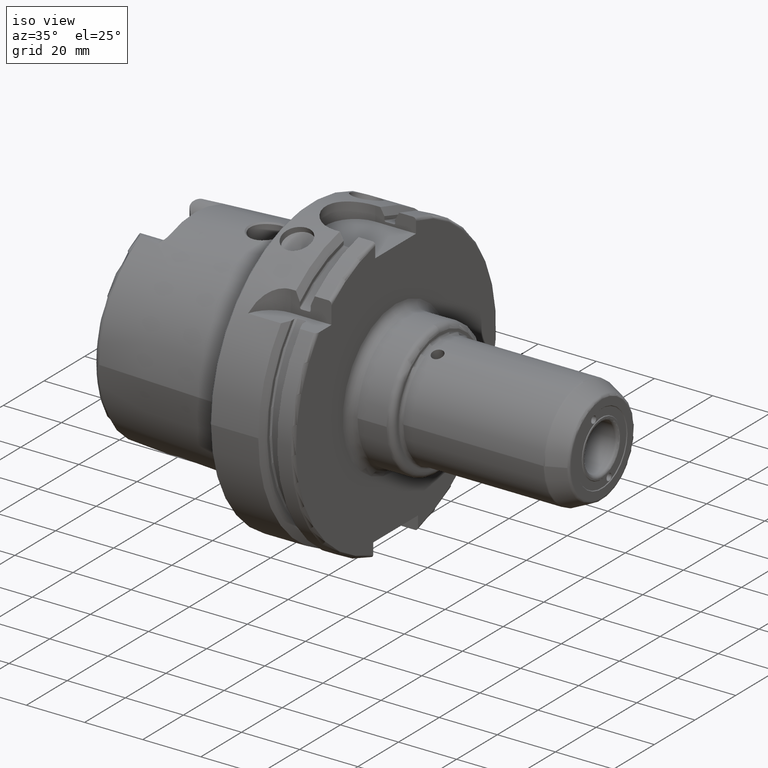
[diagram: clean part render]
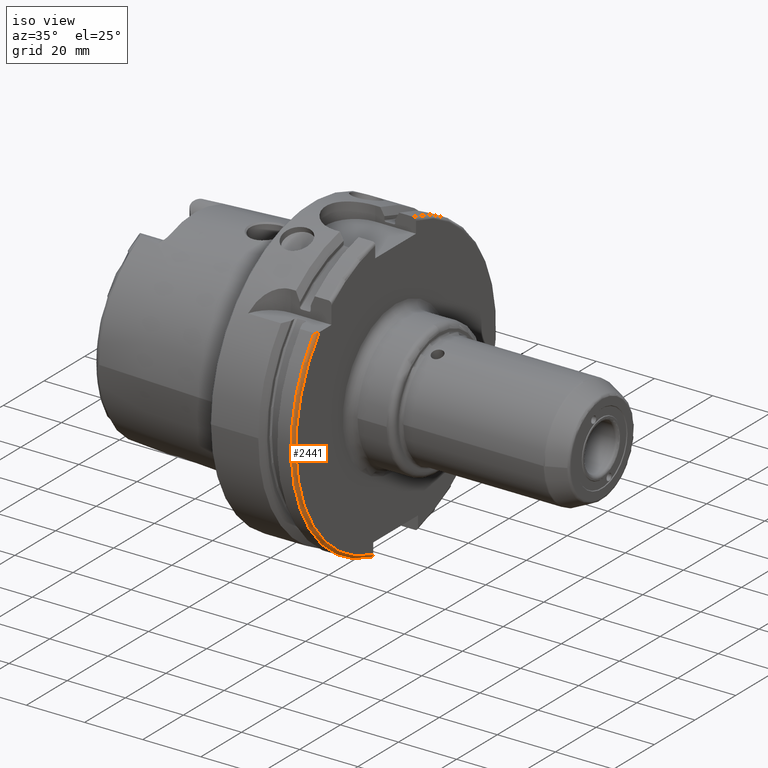
[diagram: same view with one face highlighted and labeled with its STEP entity id]
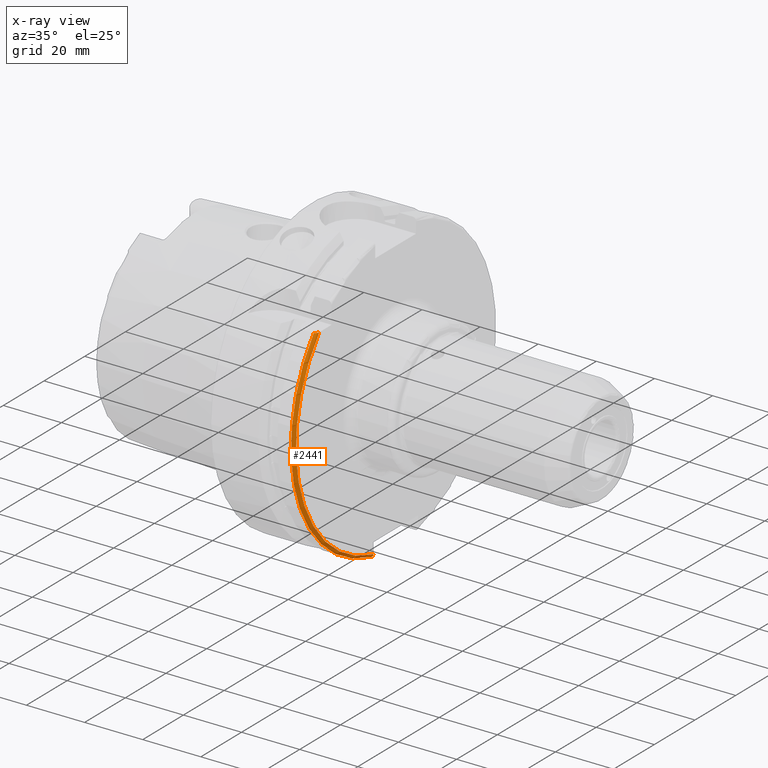
[diagram: x-ray of the same camera — body ghosted, the highlighted face saturated]
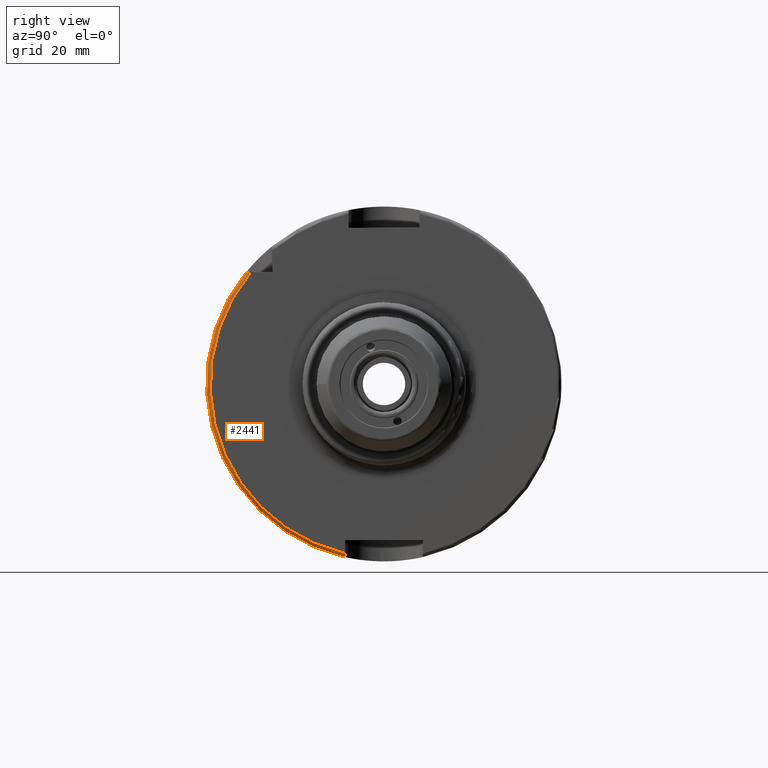
[diagram: same view with one face highlighted and labeled with its STEP entity id]
A machine part, iso view. The second image highlights one B-rep face of the part: STEP entity #2441.
The next image is the same camera in x-ray: the body ghosted, the highlighted face saturated — about 0% of this face is hidden behind the body in this view.
A second angle (right view) of the same face is appended — the face is thin or edge-on in the first view.
In plain terms, the highlighted toroidal blend (fillet) surface has major radius 49 mm and minor (blend) radius 1 mm.
Its self-contained STEP definition (entity closure, byte-faithful):
#43=TOROIDAL_SURFACE('',#2706,49.,1.);
#164=CIRCLE('',#2593,49.);
#221=CIRCLE('',#2707,50.);
#381=FACE_OUTER_BOUND('',#539,.T.);
#539=EDGE_LOOP('',(#2035,#2036,#2037,#2038));
#660=B_SPLINE_CURVE_WITH_KNOTS('',3,(#5000,#5001,#5002,#5003,#5004,#5005,
#5006,#5007,#5008,#5009),.UNSPECIFIED.,.F.,.F.,(4,2,2,2,4),(-0.170825962094808,
-0.118543630596578,-0.0729156509442915,-0.0340271521483428,0.),
 .UNSPECIFIED.);
#670=B_SPLINE_CURVE_WITH_KNOTS('',3,(#5197,#5198,#5199,#5200,#5201,#5202,
#5203,#5204,#5205,#5206),.UNSPECIFIED.,.F.,.F.,(4,2,2,2,4),(0.,0.0367272650241839,
0.0739245844742874,0.111709319934006,0.150007250748607),.UNSPECIFIED.);
#991=VERTEX_POINT('',#3982);
#992=VERTEX_POINT('',#3984);
#1102=VERTEX_POINT('',#4998);
#1134=VERTEX_POINT('',#5196);
#1266=EDGE_CURVE('',#991,#992,#164,.T.);
#1407=EDGE_CURVE('',#991,#1102,#660,.T.);
#1453=EDGE_CURVE('',#1134,#992,#670,.T.);
#1468=EDGE_CURVE('',#1102,#1134,#221,.T.);
#2035=ORIENTED_EDGE('',*,*,#1407,.T.);
#2036=ORIENTED_EDGE('',*,*,#1468,.T.);
#2037=ORIENTED_EDGE('',*,*,#1453,.T.);
#2038=ORIENTED_EDGE('',*,*,#1266,.F.);
#2441=ADVANCED_FACE('',(#381),#43,.T.);
#2593=AXIS2_PLACEMENT_3D('',#3985,#2986,#2987);
#2706=AXIS2_PLACEMENT_3D('',#5265,#3286,#3287);
#2707=AXIS2_PLACEMENT_3D('',#5266,#3288,#3289);
#2986=DIRECTION('center_axis',(1.,0.,0.));
#2987=DIRECTION('ref_axis',(0.,0.,-1.));
#3286=DIRECTION('center_axis',(1.,0.,0.));
#3287=DIRECTION('ref_axis',(0.,0.,-1.));
#3288=DIRECTION('center_axis',(1.,0.,0.));
#3289=DIRECTION('ref_axis',(0.,0.,-1.));
#3982=CARTESIAN_POINT('',(29.,-37.5333185316726,31.5));
#3984=CARTESIAN_POINT('',(29.,-11.,-47.7493455452533));
#3985=CARTESIAN_POINT('Origin',(29.,0.,0.));
#4998=CARTESIAN_POINT('',(28.,-38.8297566307078,31.5));
#5000=CARTESIAN_POINT('Ctrl Pts',(29.,-37.5333185316726,31.5));
#5001=CARTESIAN_POINT('Ctrl Pts',(29.,-37.7075929700001,31.5));
#5002=CARTESIAN_POINT('Ctrl Pts',(28.9664820083304,-37.9140187901503,31.5));
#5003=CARTESIAN_POINT('Ctrl Pts',(28.8572425149189,-38.2215616508799,31.5));
#5004=CARTESIAN_POINT('Ctrl Pts',(28.7693181429129,-38.3814988424326,31.5));
#5005=CARTESIAN_POINT('Ctrl Pts',(28.5860354601279,-38.5954486383736,31.5));
#5006=CARTESIAN_POINT('Ctrl Pts',(28.4650491410143,-38.6932205975694,31.5));
#5007=CARTESIAN_POINT('Ctrl Pts',(28.2458099245109,-38.7981421072727,31.5));
#5008=CARTESIAN_POINT('Ctrl Pts',(28.1134238404945,-38.8297566307078,31.5));
#5009=CARTESIAN_POINT('Ctrl Pts',(28.,-38.8297566307078,31.5));
#5196=CARTESIAN_POINT('',(28.,-11.,-48.7749935930288));
#5197=CARTESIAN_POINT('Ctrl Pts',(28.,-11.,-48.7749935930288));
#5198=CARTESIAN_POINT('Ctrl Pts',(28.1224242167473,-11.,-48.7749935930288));
#5199=CARTESIAN_POINT('Ctrl Pts',(28.2664089378791,-11.,-48.7458273107991));
#5200=CARTESIAN_POINT('Ctrl Pts',(28.4935811491945,-11.,-48.6503638235243));
#5201=CARTESIAN_POINT('Ctrl Pts',(28.6165742030546,-11.,-48.5666323605576));
#5202=CARTESIAN_POINT('Ctrl Pts',(28.7919641478885,-11.,-48.3885636593617));
#5203=CARTESIAN_POINT('Ctrl Pts',(28.8748308300651,-11.,-48.2621670900838));
#5204=CARTESIAN_POINT('Ctrl Pts',(28.9706639476237,-11.,-48.0273618911654));
#5205=CARTESIAN_POINT('Ctrl Pts',(29.,-11.,-47.8770053146353));
#5206=CARTESIAN_POINT('Ctrl Pts',(29.,-11.,-47.7493455452533));
#5265=CARTESIAN_POINT('Origin',(28.,0.,0.));
#5266=CARTESIAN_POINT('Origin',(28.,0.,0.));